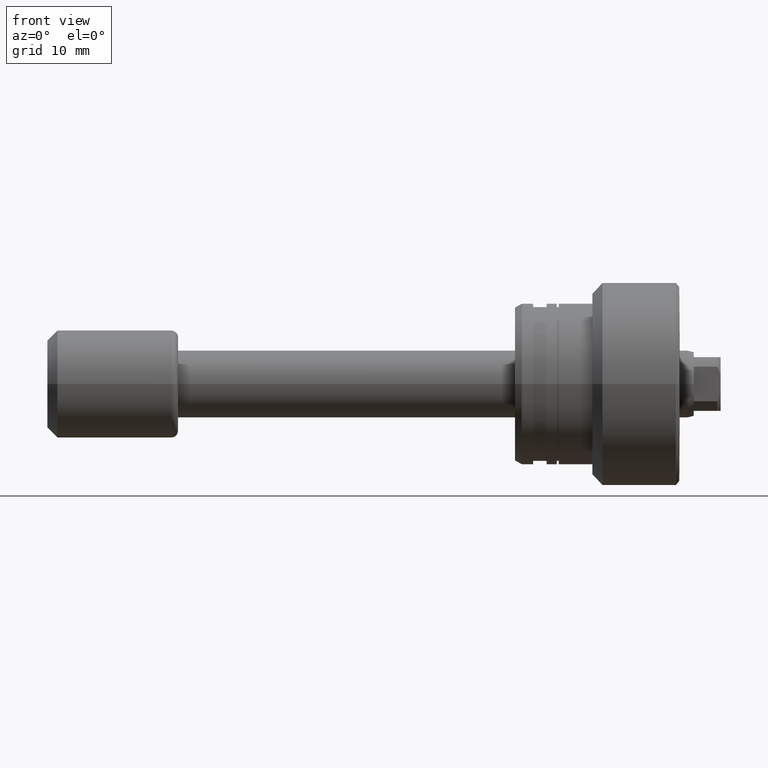
[diagram: clean part render]
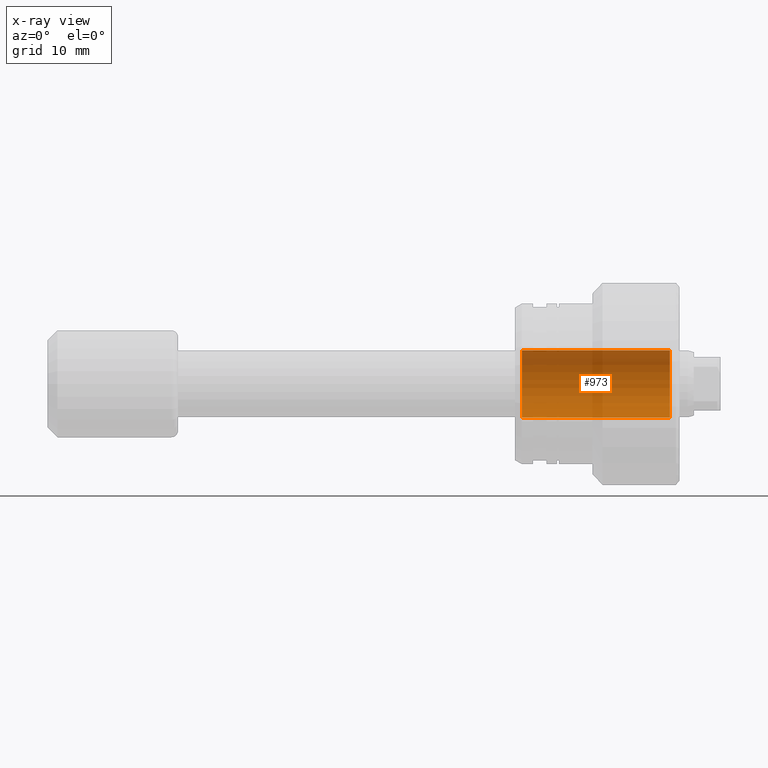
[diagram: x-ray — body ghosted, one internal face saturated and labeled with its STEP entity id]
A machine part, front view, then the same camera in x-ray: the body is ghosted and one INTERNAL B-rep face — a face not visible from any outside direction — is saturated and labeled: STEP entity #973.
In plain terms, the highlighted cylindrical surface (edge-blend (fillet) strip) has radius 5 mm, axis along (1, 0, 0).
Its self-contained STEP definition (entity closure, byte-faithful):
#62 = CARTESIAN_POINT ( 'NONE',  ( -1.500000000000000000, 0.000000000000000000, -5.000000000000000000 ) ) ;
#119 = CIRCLE ( 'NONE', #1274, 5.000000000000000000 ) ;
#176 = CARTESIAN_POINT ( 'NONE',  ( -38.64213562373095101, 0.000000000000000000, -5.000000000000000000 ) ) ;
#181 = EDGE_LOOP ( 'NONE', ( #678, #622, #396, #837 ) ) ;
#206 = DIRECTION ( 'NONE',  ( 0.000000000000000000, 0.000000000000000000, 1.000000000000000000 ) ) ;
#377 = CARTESIAN_POINT ( 'NONE',  ( -23.49999999999997868, 6.123233995736766282E-16, 5.000000000000000000 ) ) ;
#396 = ORIENTED_EDGE ( 'NONE', *, *, #1089, .T. ) ;
#622 = ORIENTED_EDGE ( 'NONE', *, *, #1335, .T. ) ;
#678 = ORIENTED_EDGE ( 'NONE', *, *, #1494, .F. ) ;
#701 = CYLINDRICAL_SURFACE ( 'NONE', #2105, 5.000000000000000000 ) ;
#736 = DIRECTION ( 'NONE',  ( 0.000000000000000000, 0.000000000000000000, -1.000000000000000000 ) ) ;
#796 = DIRECTION ( 'NONE',  ( -1.000000000000000000, -0.000000000000000000, -0.000000000000000000 ) ) ;
#837 = ORIENTED_EDGE ( 'NONE', *, *, #844, .T. ) ;
#844 = EDGE_CURVE ( 'NONE', #2222, #1760, #119, .T. ) ;
#859 = CARTESIAN_POINT ( 'NONE',  ( -1.500000000000000000, 0.000000000000000000, 0.000000000000000000 ) ) ;
#973 = ADVANCED_FACE ( 'NONE', ( #1820 ), #701, .F. ) ;
#1039 = CARTESIAN_POINT ( 'NONE',  ( -23.49999999999997868, 0.000000000000000000, -5.000000000000000000 ) ) ;
#1089 = EDGE_CURVE ( 'NONE', #2232, #2222, #1728, .T. ) ;
#1123 = CIRCLE ( 'NONE', #2065, 5.000000000000000000 ) ;
#1274 = AXIS2_PLACEMENT_3D ( 'NONE', #859, #1777, #1610 ) ;
#1303 = DIRECTION ( 'NONE',  ( 1.000000000000000000, -0.000000000000000000, -0.000000000000000000 ) ) ;
#1335 = EDGE_CURVE ( 'NONE', #1350, #2232, #1123, .T. ) ;
#1350 = VERTEX_POINT ( 'NONE', #377 ) ;
#1449 = CARTESIAN_POINT ( 'NONE',  ( -38.64213562373095101, 0.000000000000000000, 0.000000000000000000 ) ) ;
#1494 = EDGE_CURVE ( 'NONE', #1350, #1760, #2334, .T. ) ;
#1535 = DIRECTION ( 'NONE',  ( 1.000000000000000000, -0.000000000000000000, -0.000000000000000000 ) ) ;
#1587 = VECTOR ( 'NONE', #1535, 1000.000000000000000 ) ;
#1597 = CARTESIAN_POINT ( 'NONE',  ( -38.64213562373095101, 6.123233995736766282E-16, 5.000000000000000000 ) ) ;
#1598 = CARTESIAN_POINT ( 'NONE',  ( -1.500000000000000000, 6.123233995736766282E-16, 5.000000000000000000 ) ) ;
#1608 = DIRECTION ( 'NONE',  ( 1.000000000000000000, -0.000000000000000000, -0.000000000000000000 ) ) ;
#1610 = DIRECTION ( 'NONE',  ( 0.000000000000000000, 0.000000000000000000, -1.000000000000000000 ) ) ;
#1675 = VECTOR ( 'NONE', #1608, 1000.000000000000000 ) ;
#1728 = LINE ( 'NONE', #176, #1587 ) ;
#1760 = VERTEX_POINT ( 'NONE', #1598 ) ;
#1777 = DIRECTION ( 'NONE',  ( 1.000000000000000000, 0.000000000000000000, 0.000000000000000000 ) ) ;
#1820 = FACE_OUTER_BOUND ( 'NONE', #181, .T. ) ;
#1921 = CARTESIAN_POINT ( 'NONE',  ( -23.49999999999997868, 0.000000000000000000, 0.000000000000000000 ) ) ;
#2065 = AXIS2_PLACEMENT_3D ( 'NONE', #1921, #796, #206 ) ;
#2105 = AXIS2_PLACEMENT_3D ( 'NONE', #1449, #1303, #736 ) ;
#2222 = VERTEX_POINT ( 'NONE', #62 ) ;
#2232 = VERTEX_POINT ( 'NONE', #1039 ) ;
#2334 = LINE ( 'NONE', #1597, #1675 ) ;